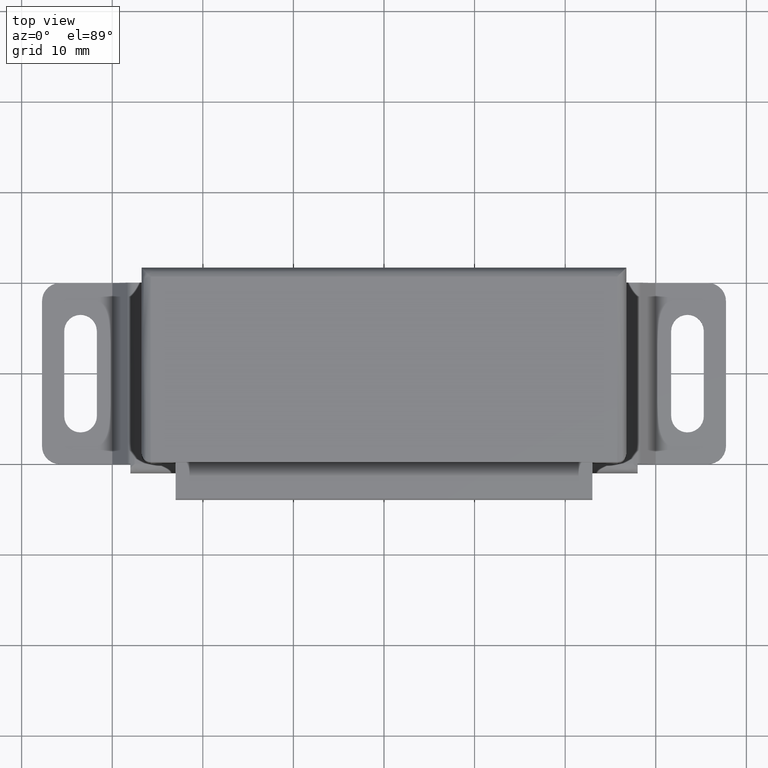
[diagram: clean part render]
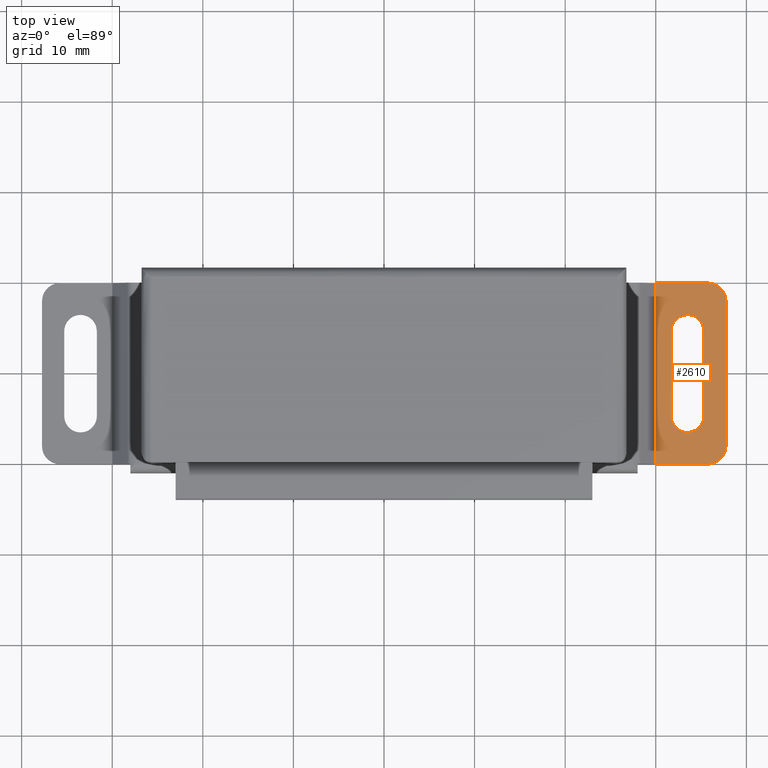
[diagram: same view with one face highlighted and labeled with its STEP entity id]
A machine part, top view. The second image highlights one B-rep face of the part: STEP entity #2610.
In plain terms, the highlighted face is a freeform B-spline surface patch.
Its self-contained STEP definition (entity closure, byte-faithful):
#548=CARTESIAN_POINT('',(37.750012999999697,-18.0,1.0));
#549=VERTEX_POINT('',#548);
#555=CARTESIAN_POINT('',(35.750012999999697,-20.0,1.0));
#556=VERTEX_POINT('',#555);
#557=CARTESIAN_POINT('',(35.750012999999697,-20.0,1.0));
#558=CARTESIAN_POINT('',(36.011861813419067,-20.000256040587221,1.0));
#559=CARTESIAN_POINT('',(36.404332343184770,-19.921771660689849,1.0));
#560=CARTESIAN_POINT('',(36.897323541395060,-19.658150649357871,0.999999999999999));
#561=CARTESIAN_POINT('',(37.259377230719679,-19.345924634741252,1.000000000000000));
#562=CARTESIAN_POINT('',(37.539609358415959,-18.937445178859932,0.999999999999999));
#563=CARTESIAN_POINT('',(37.711644244680798,-18.474491431768492,1.0));
#564=CARTESIAN_POINT('',(37.750050169351347,-18.163627261873948,1.0));
#565=CARTESIAN_POINT('',(37.750012999999697,-18.0,1.0));
#566=B_SPLINE_CURVE_WITH_KNOTS('',3,(#557,#558,#559,#560,#561,#562,#563,#564,#565),.UNSPECIFIED.,.F.,.U.,(4,1,1,1,1,1,4),(0.000000039029702,0.785418103418767,1.178135084954511,1.669008849949355,2.208986958987161,2.650788158408510,3.141671488669121),.UNSPECIFIED.);
#567=EDGE_CURVE('',#556,#549,#566,.T.);
#607=CARTESIAN_POINT('',(35.750012999999697,3.469447E-015,1.0));
#608=VERTEX_POINT('',#607);
#614=CARTESIAN_POINT('',(37.750012999999697,-2.0,1.0));
#615=VERTEX_POINT('',#614);
#616=CARTESIAN_POINT('',(37.750012999999697,-2.0,1.0));
#617=CARTESIAN_POINT('',(37.750188435665649,-1.770900505644687,1.000000000000001));
#618=CARTESIAN_POINT('',(37.687452000361567,-1.411042823106926,0.999999999999999));
#619=CARTESIAN_POINT('',(37.490577597839618,-0.994893212463146,1.000000000000001));
#620=CARTESIAN_POINT('',(37.282741357339297,-0.699781849564659,0.999999999999999));
#621=CARTESIAN_POINT('',(37.038603549210890,-0.455641358747846,1.000000000000001));
#622=CARTESIAN_POINT('',(36.727134470215837,-0.241950436144732,0.999999999999999));
#623=CARTESIAN_POINT('',(36.306269615171082,-0.055366283219735,1.0));
#624=CARTESIAN_POINT('',(35.962742888863332,0.000129298342110,0.999999999999999));
#625=CARTESIAN_POINT('',(35.750012999999697,3.469447E-015,1.0));
#626=B_SPLINE_CURVE_WITH_KNOTS('',3,(#616,#617,#618,#619,#620,#621,#622,#623,#624,#625),.UNSPECIFIED.,.F.,.U.,(4,1,1,1,1,1,1,4),(0.000000039031740,0.687238771491181,1.079956206727889,1.374489969575400,1.767184621774116,2.110808462379190,2.503520301861044,3.141671488669128),.UNSPECIFIED.);
#627=EDGE_CURVE('',#615,#608,#626,.T.);
#1210=CARTESIAN_POINT('',(35.300009000000003,-14.699999999999999,1.0));
#1211=VERTEX_POINT('',#1210);
#1212=CARTESIAN_POINT('',(35.300009000000003,-5.300000000000000,1.0));
#1213=VERTEX_POINT('',#1212);
#1214=CARTESIAN_POINT('',(35.300009000000003,-14.699999999999999,1.0));
#1215=CARTESIAN_POINT('',(35.300009000000003,-5.300000000000000,1.0));
#1216=QUASI_UNIFORM_CURVE('',1,(#1214,#1215),.UNSPECIFIED.,.F.,.U.);
#1217=EDGE_CURVE('',#1211,#1213,#1216,.T.);
#1259=CARTESIAN_POINT('',(31.700008999999898,-14.699999999999999,1.0));
#1260=VERTEX_POINT('',#1259);
#1261=CARTESIAN_POINT('',(33.500010464752670,-16.499999999999439,1.0));
#1262=VERTEX_POINT('',#1261);
#1263=CARTESIAN_POINT('',(31.700008999999898,-14.699999999999999,1.0));
#1264=CARTESIAN_POINT('',(31.699906863817510,-14.891452770966531,1.000000000000003));
#1265=CARTESIAN_POINT('',(31.749823638338949,-15.200638610050710,0.999999999999995));
#1266=CARTESIAN_POINT('',(31.911777181611519,-15.565882144893850,1.000000000000003));
#1267=CARTESIAN_POINT('',(32.092261660468480,-15.835976378020449,0.999999999999998));
#1268=CARTESIAN_POINT('',(32.357490355198223,-16.114699281366729,1.000000000000001));
#1269=CARTESIAN_POINT('',(32.684488114430543,-16.321732062623589,1.000000000000001));
#1270=CARTESIAN_POINT('',(33.087709709813012,-16.465957970174610,1.000000000000000));
#1271=CARTESIAN_POINT('',(33.338016663005277,-16.500059194752438,0.999999999999999));
#1272=CARTESIAN_POINT('',(33.500010464752670,-16.499999999999439,1.0));
#1273=B_SPLINE_CURVE_WITH_KNOTS('',3,(#1263,#1264,#1265,#1266,#1267,#1268,#1269,#1270,#1271,#1272),.UNSPECIFIED.,.F.,.U.,(4,1,1,1,1,1,1,4),(0.000000047966348,0.574333914000794,0.927784396242062,1.192868850797928,1.546280344157074,2.076448714180943,2.341536666774783,2.827505165382389),.UNSPECIFIED.);
#1274=EDGE_CURVE('',#1260,#1262,#1273,.T.);
#1276=CARTESIAN_POINT('',(33.500010464752670,-16.499999999999439,1.0));
#1277=CARTESIAN_POINT('',(33.691462703873960,-16.500098198033900,1.000000000000001));
#1278=CARTESIAN_POINT('',(34.059550269107397,-16.440705299606570,0.999999999999999));
#1279=CARTESIAN_POINT('',(34.551588156664977,-16.193118808626430,1.000000000000001));
#1280=CARTESIAN_POINT('',(34.896559641996831,-15.864603936999970,0.999999999999999));
#1281=CARTESIAN_POINT('',(35.102323796990802,-15.539513712539740,1.000000000000002));
#1282=CARTESIAN_POINT('',(35.254941241564460,-15.171181458998211,1.000000000000003));
#1283=CARTESIAN_POINT('',(35.300112167360730,-14.891455427571520,0.999999999999995));
#1284=CARTESIAN_POINT('',(35.300009000000003,-14.699999999999999,1.0));
#1285=B_SPLINE_CURVE_WITH_KNOTS('',3,(#1276,#1277,#1278,#1279,#1280,#1281,#1282,#1283,#1284),.UNSPECIFIED.,.F.,.U.,(4,1,1,1,1,1,4),(0.000000049973579,0.574333580118428,1.104509451694886,1.634634850703704,1.988084573047293,2.253170720945752,2.827503514223480),.UNSPECIFIED.);
#1286=EDGE_CURVE('',#1262,#1211,#1285,.T.);
#1331=CARTESIAN_POINT('',(31.700008999999898,-5.300000000000000,1.0));
#1332=VERTEX_POINT('',#1331);
#1333=CARTESIAN_POINT('',(31.700008999999898,-5.300000000000000,1.0));
#1334=CARTESIAN_POINT('',(31.700008999999898,-14.699999999999999,1.0));
#1335=QUASI_UNIFORM_CURVE('',1,(#1333,#1334),.UNSPECIFIED.,.F.,.U.);
#1336=EDGE_CURVE('',#1332,#1260,#1335,.T.);
#1372=CARTESIAN_POINT('',(33.500007535247242,-3.500000000000556,1.0));
#1373=VERTEX_POINT('',#1372);
#1374=CARTESIAN_POINT('',(35.300009000000003,-5.300000000000000,1.0));
#1375=CARTESIAN_POINT('',(35.300013684307793,-5.182198532770695,0.999999999999999));
#1376=CARTESIAN_POINT('',(35.272488608637623,-4.902384062090584,1.000000000000001));
#1377=CARTESIAN_POINT('',(35.141966527392711,-4.522971162329467,1.000000000000000));
#1378=CARTESIAN_POINT('',(34.943997803065884,-4.210452150522080,0.999999999999999));
#1379=CARTESIAN_POINT('',(34.706027249184217,-3.947845976061926,1.000000000000003));
#1380=CARTESIAN_POINT('',(34.420014676872157,-3.735729953747596,0.999999999999998));
#1381=CARTESIAN_POINT('',(34.000635842965352,-3.549827437773002,1.0));
#1382=CARTESIAN_POINT('',(33.691463862361672,-3.499893867996095,0.999999999999999));
#1383=CARTESIAN_POINT('',(33.500007535247242,-3.500000000000556,1.0));
#1384=B_SPLINE_CURVE_WITH_KNOTS('',3,(#1374,#1375,#1376,#1377,#1378,#1379,#1380,#1381,#1382,#1383),.UNSPECIFIED.,.F.,.U.,(4,1,1,1,1,1,1,4),(0.000000047963844,0.353422922945377,0.839419913071693,1.192868850796553,1.457927969857867,1.899721105420354,2.253172037361201,2.827505165382410),.UNSPECIFIED.);
#1385=EDGE_CURVE('',#1213,#1373,#1384,.T.);
#1387=CARTESIAN_POINT('',(33.500007535247242,-3.500000000000556,1.0));
#1388=CARTESIAN_POINT('',(33.308552199551833,-3.499895541901619,1.000000000000001));
#1389=CARTESIAN_POINT('',(32.999375877477803,-3.549821201658514,0.999999999999997));
#1390=CARTESIAN_POINT('',(32.607063654060617,-3.723751588526732,1.000000000000005));
#1391=CARTESIAN_POINT('',(32.316713863021370,-3.928235777505559,0.999999999999994));
#1392=CARTESIAN_POINT('',(32.092253184765127,-4.164011366396085,1.000000000000004));
#1393=CARTESIAN_POINT('',(31.911771290855150,-4.434115708925356,1.0));
#1394=CARTESIAN_POINT('',(31.749836762232579,-4.799367045846637,1.000000000000003));
#1395=CARTESIAN_POINT('',(31.699893841894699,-5.108544471612676,0.999999999999997));
#1396=CARTESIAN_POINT('',(31.700008999999898,-5.300000000000000,1.0));
#1397=B_SPLINE_CURVE_WITH_KNOTS('',3,(#1387,#1388,#1389,#1390,#1391,#1392,#1393,#1394,#1395,#1396),.UNSPECIFIED.,.F.,.U.,(4,1,1,1,1,1,1,4),(0.000000049975944,0.574333580120916,0.927783855949088,1.281223570951906,1.634634850705517,1.899719995195110,2.253170720946534,2.827503514223487),.UNSPECIFIED.);
#1398=EDGE_CURVE('',#1373,#1332,#1397,.T.);
#2331=CARTESIAN_POINT('',(29.999988200029801,-20.0,1.0));
#2332=VERTEX_POINT('',#2331);
#2333=CARTESIAN_POINT('',(35.750012999999697,-20.0,1.0));
#2334=CARTESIAN_POINT('',(29.999988200029801,-20.0,1.0));
#2335=QUASI_UNIFORM_CURVE('',1,(#2333,#2334),.UNSPECIFIED.,.F.,.U.);
#2336=EDGE_CURVE('',#556,#2332,#2335,.T.);
#2359=CARTESIAN_POINT('',(29.999988200029801,0.0,1.0));
#2360=VERTEX_POINT('',#2359);
#2361=CARTESIAN_POINT('',(35.750012999999697,3.469447E-015,1.0));
#2362=CARTESIAN_POINT('',(29.999988200029801,0.0,1.0));
#2363=QUASI_UNIFORM_CURVE('',1,(#2361,#2362),.UNSPECIFIED.,.F.,.U.);
#2364=EDGE_CURVE('',#608,#2360,#2363,.T.);
#2577=CARTESIAN_POINT('',(29.999988200029801,0.0,1.0));
#2578=CARTESIAN_POINT('',(29.999988200029801,-20.0,1.0));
#2579=QUASI_UNIFORM_CURVE('',1,(#2577,#2578),.UNSPECIFIED.,.F.,.U.);
#2580=EDGE_CURVE('',#2360,#2332,#2579,.T.);
#2585=CARTESIAN_POINT('',(29.612874923116390,-20.998999961236120,1.0));
#2586=CARTESIAN_POINT('',(38.137125168263168,-20.998999961236120,1.0));
#2587=CARTESIAN_POINT('',(29.612874923116390,0.999000497677927,1.0));
#2588=CARTESIAN_POINT('',(38.137125168263168,0.999000497677927,1.0));
#2589=B_SPLINE_SURFACE_WITH_KNOTS('',1,1,((#2585,#2587),(#2586,#2588)),.UNSPECIFIED.,.F.,.F.,.U.,(2,2),(2,2),(0.0,8.524250245146781),(0.0,21.998000458914049),.UNSPECIFIED.);
#2590=CARTESIAN_POINT('',(37.750012999999697,-2.0,1.0));
#2591=CARTESIAN_POINT('',(37.750012999999697,-18.0,1.0));
#2592=QUASI_UNIFORM_CURVE('',1,(#2590,#2591),.UNSPECIFIED.,.F.,.U.);
#2593=EDGE_CURVE('',#615,#549,#2592,.T.);
#2594=ORIENTED_EDGE('',*,*,#2593,.F.);
#2595=ORIENTED_EDGE('',*,*,#627,.T.);
#2596=ORIENTED_EDGE('',*,*,#2364,.T.);
#2597=ORIENTED_EDGE('',*,*,#2580,.T.);
#2598=ORIENTED_EDGE('',*,*,#2336,.F.);
#2599=ORIENTED_EDGE('',*,*,#567,.T.);
#2600=EDGE_LOOP('',(#2594,#2595,#2596,#2597,#2598,#2599));
#2601=FACE_OUTER_BOUND('',#2600,.T.);
#2602=ORIENTED_EDGE('',*,*,#1217,.F.);
#2603=ORIENTED_EDGE('',*,*,#1286,.F.);
#2604=ORIENTED_EDGE('',*,*,#1274,.F.);
#2605=ORIENTED_EDGE('',*,*,#1336,.F.);
#2606=ORIENTED_EDGE('',*,*,#1398,.F.);
#2607=ORIENTED_EDGE('',*,*,#1385,.F.);
#2608=EDGE_LOOP('',(#2602,#2603,#2604,#2605,#2606,#2607));
#2609=FACE_BOUND('',#2608,.T.);
#2610=ADVANCED_FACE('',(#2601,#2609),#2589,.T.);